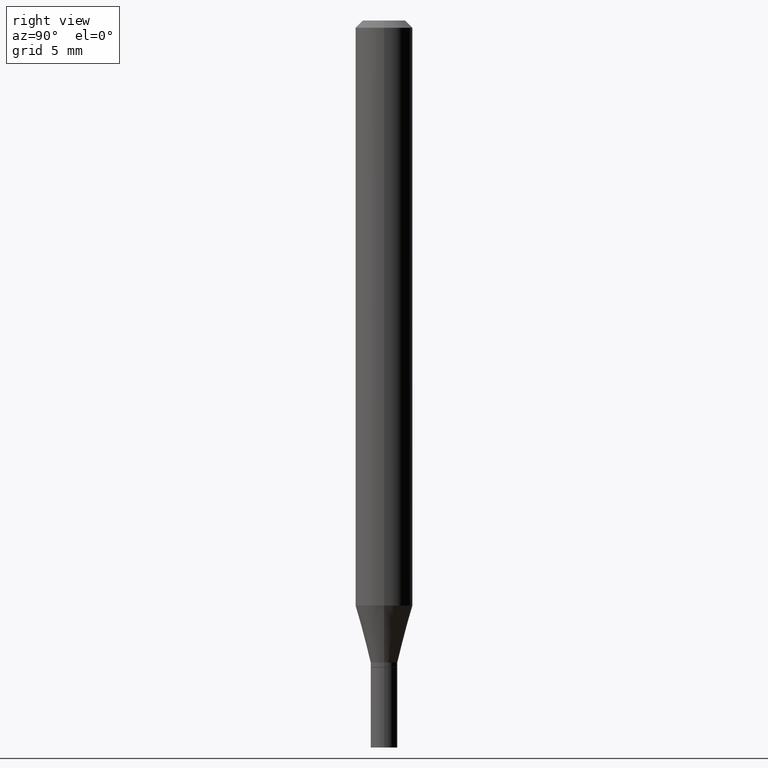
[diagram: clean part render]
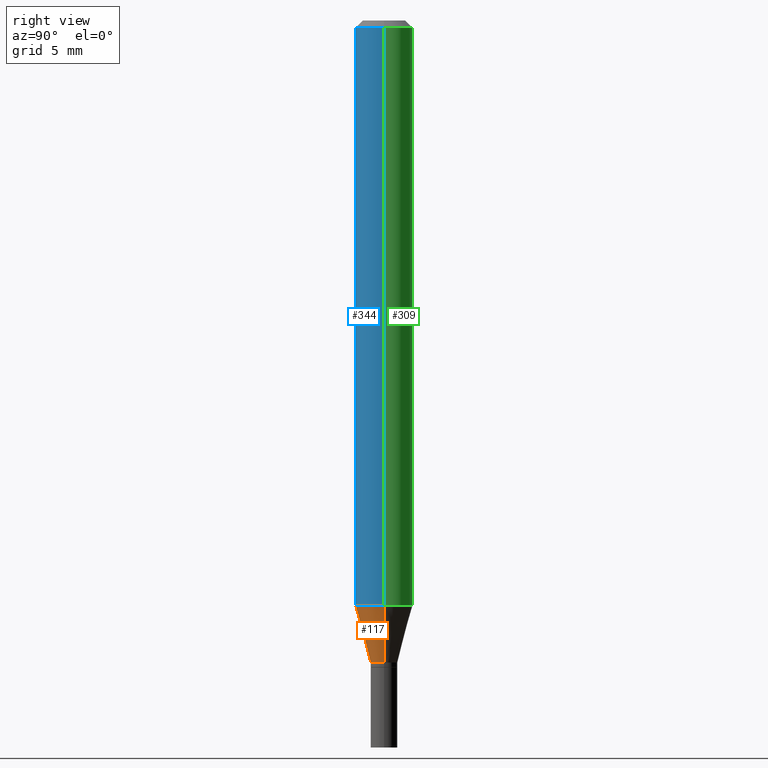
[diagram: same view with three faces highlighted in distinct colors, each labeled with its STEP entity id]
A machine part, right view with three faces highlighted in distinct colors.
Their STEP definitions:

[orange] entity #117 — the highlighted conical surface has half-angle 15 deg.
#8 = DIRECTION ( 'NONE',  ( 1.000000000000000000, -6.982962677686275388E-15, 0.000000000000000000 ) ) ;
#9 = AXIS2_PLACEMENT_3D ( 'NONE', #404, #80, #225 ) ;
#24 = ORIENTED_EDGE ( 'NONE', *, *, #427, .F. ) ;
#31 = VERTEX_POINT ( 'NONE', #284 ) ;
#42 = DIRECTION ( 'NONE',  ( 0.2588190451025213501, 1.565188264969621968E-15, 0.9659258262890682012 ) ) ;
#52 = DIRECTION ( 'NONE',  ( 1.000000000000000000, -6.982962677686265133E-15, 0.000000000000000000 ) ) ;
#53 = CARTESIAN_POINT ( 'NONE',  ( -0.05905000000000000526, -3.794783544832691928E-15, -1.207040399561580157 ) ) ;
#60 = VECTOR ( 'NONE', #42, 39.37007874015747433 ) ;
#76 = LINE ( 'NONE', #444, #233 ) ;
#80 = DIRECTION ( 'NONE',  ( -2.445468806185136597E-29, 3.491481338843145583E-15, 1.000000000000000000 ) ) ;
#112 = CARTESIAN_POINT ( 'NONE',  ( 0.05905000000000000526, -4.626702976416405553E-15, -1.207040399561580157 ) ) ;
#116 = DIRECTION ( 'NONE',  ( -0.2588190451025213501, 5.211531920934551042E-15, 0.9659258262890682012 ) ) ;
#117 = ADVANCED_FACE ( 'NONE', ( #219 ), #375, .T. ) ;
#136 = ORIENTED_EDGE ( 'NONE', *, *, #351, .T. ) ;
#138 = VERTEX_POINT ( 'NONE', #229 ) ;
#145 = DIRECTION ( 'NONE',  ( -2.445468806185136597E-29, 3.491481338843145583E-15, 1.000000000000000000 ) ) ;
#172 = ORIENTED_EDGE ( 'NONE', *, *, #463, .F. ) ;
#186 = CARTESIAN_POINT ( 'NONE',  ( 0.02754999999999992524, -4.817196803201886274E-15, -1.324599999999999778 ) ) ;
#219 = FACE_OUTER_BOUND ( 'NONE', #379, .T. ) ;
#221 = AXIS2_PLACEMENT_3D ( 'NONE', #332, #370, #8 ) ;
#225 = DIRECTION ( 'NONE',  ( 1.000000000000000000, -6.982962677686275388E-15, 0.000000000000000000 ) ) ;
#229 = CARTESIAN_POINT ( 'NONE',  ( -0.02754999999999992524, -4.111922601281208218E-15, -1.324599999999999778 ) ) ;
#230 = CARTESIAN_POINT ( 'NONE',  ( 2.951779644933087895E-29, -4.214359030299031421E-15, -1.207040399561580157 ) ) ;
#233 = VECTOR ( 'NONE', #116, 39.37007874015747433 ) ;
#274 = CIRCLE ( 'NONE', #9, 0.02754999999999992524 ) ;
#282 = VERTEX_POINT ( 'NONE', #53 ) ;
#284 = CARTESIAN_POINT ( 'NONE',  ( 0.02754999999999992524, -4.817196803201886274E-15, -1.324599999999999778 ) ) ;
#311 = VERTEX_POINT ( 'NONE', #112 ) ;
#332 = CARTESIAN_POINT ( 'NONE',  ( 3.239267980672831637E-29, -4.624816181431630270E-15, -1.324599999999999778 ) ) ;
#340 = LINE ( 'NONE', #186, #60 ) ;
#351 = EDGE_CURVE ( 'NONE', #31, #311, #340, .T. ) ;
#357 = ORIENTED_EDGE ( 'NONE', *, *, #446, .T. ) ;
#366 = CIRCLE ( 'NONE', #422, 0.05904999999999999832 ) ;
#370 = DIRECTION ( 'NONE',  ( -2.445468806185136597E-29, 3.491481338843145583E-15, 1.000000000000000000 ) ) ;
#375 = CONICAL_SURFACE ( 'NONE', #221, 0.02754999999999992524, 0.2617993877991500740 ) ;
#379 = EDGE_LOOP ( 'NONE', ( #24, #357, #136, #172 ) ) ;
#404 = CARTESIAN_POINT ( 'NONE',  ( 3.239267980672831637E-29, -4.624816181431630270E-15, -1.324599999999999778 ) ) ;
#422 = AXIS2_PLACEMENT_3D ( 'NONE', #230, #145, #52 ) ;
#427 = EDGE_CURVE ( 'NONE', #138, #282, #76, .T. ) ;
#444 = CARTESIAN_POINT ( 'NONE',  ( -0.02754999999999992524, -4.429061657729722929E-15, -1.324599999999999778 ) ) ;
#446 = EDGE_CURVE ( 'NONE', #138, #31, #274, .T. ) ;
#463 = EDGE_CURVE ( 'NONE', #282, #311, #366, .T. ) ;

[blue] entity #344 — the highlighted cylindrical surface (edge-blend (fillet) strip) has radius 1.4999 mm, axis along (-0, 0, 1).
#10 = CARTESIAN_POINT ( 'NONE',  ( -0.05904999999999999832, -1.713790139724500349E-15, -0.01499999999999999944 ) ) ;
#37 = LINE ( 'NONE', #264, #261 ) ;
#52 = DIRECTION ( 'NONE',  ( 1.000000000000000000, -6.982962677686265133E-15, 0.000000000000000000 ) ) ;
#53 = CARTESIAN_POINT ( 'NONE',  ( -0.05905000000000000526, -3.794783544832691928E-15, -1.207040399561580157 ) ) ;
#56 = DIRECTION ( 'NONE',  ( -2.445468806185136877E-29, 3.491481338843145188E-15, 1.000000000000000000 ) ) ;
#83 = FACE_OUTER_BOUND ( 'NONE', #93, .T. ) ;
#87 = CARTESIAN_POINT ( 'NONE',  ( 0.05904999999999999832, -4.647161662000212105E-16, -0.01499999999999999944 ) ) ;
#93 = EDGE_LOOP ( 'NONE', ( #197, #324, #411, #239 ) ) ;
#112 = CARTESIAN_POINT ( 'NONE',  ( 0.05905000000000000526, -4.626702976416405553E-15, -1.207040399561580157 ) ) ;
#145 = DIRECTION ( 'NONE',  ( -2.445468806185136597E-29, 3.491481338843145583E-15, 1.000000000000000000 ) ) ;
#156 = DIRECTION ( 'NONE',  ( -2.445468806185136877E-29, 3.491481338843145188E-15, 1.000000000000000000 ) ) ;
#160 = CARTESIAN_POINT ( 'NONE',  ( 0.05904999999999999832, -4.123439461173740327E-16, 2.879382386107500220E-30 ) ) ;
#183 = DIRECTION ( 'NONE',  ( -2.445468806185136597E-29, 3.491481338843145583E-15, 1.000000000000000000 ) ) ;
#192 = DIRECTION ( 'NONE',  ( 1.000000000000000000, -6.982962677686266711E-15, 4.876176775795936353E-29 ) ) ;
#197 = ORIENTED_EDGE ( 'NONE', *, *, #451, .F. ) ;
#230 = CARTESIAN_POINT ( 'NONE',  ( 2.951779644933087895E-29, -4.214359030299031421E-15, -1.207040399561580157 ) ) ;
#231 = VECTOR ( 'NONE', #56, 39.37007874015748143 ) ;
#237 = LINE ( 'NONE', #160, #231 ) ;
#239 = ORIENTED_EDGE ( 'NONE', *, *, #256, .F. ) ;
#247 = AXIS2_PLACEMENT_3D ( 'NONE', #290, #183, #192 ) ;
#249 = EDGE_CURVE ( 'NONE', #311, #279, #237, .T. ) ;
#252 = AXIS2_PLACEMENT_3D ( 'NONE', #273, #407, #267 ) ;
#256 = EDGE_CURVE ( 'NONE', #447, #279, #454, .T. ) ;
#261 = VECTOR ( 'NONE', #156, 39.37007874015748143 ) ;
#264 = CARTESIAN_POINT ( 'NONE',  ( -0.05904999999999999832, 4.195754854663391478E-16, -2.904631170795521892E-30 ) ) ;
#267 = DIRECTION ( 'NONE',  ( 1.000000000000000000, -6.982962677686266711E-15, 0.000000000000000000 ) ) ;
#273 = CARTESIAN_POINT ( 'NONE',  ( 3.668203209277705088E-31, -5.237222008264718399E-17, -0.01499999999999999944 ) ) ;
#279 = VERTEX_POINT ( 'NONE', #87 ) ;
#282 = VERTEX_POINT ( 'NONE', #53 ) ;
#290 = CARTESIAN_POINT ( 'NONE',  ( 0.000000000000000000, 0.000000000000000000, 0.000000000000000000 ) ) ;
#311 = VERTEX_POINT ( 'NONE', #112 ) ;
#324 = ORIENTED_EDGE ( 'NONE', *, *, #463, .T. ) ;
#344 = ADVANCED_FACE ( 'NONE', ( #83 ), #367, .T. ) ;
#366 = CIRCLE ( 'NONE', #422, 0.05904999999999999832 ) ;
#367 = CYLINDRICAL_SURFACE ( 'NONE', #247, 0.05904999999999999832 ) ;
#407 = DIRECTION ( 'NONE',  ( -2.445468806185136597E-29, 3.491481338843145583E-15, 1.000000000000000000 ) ) ;
#411 = ORIENTED_EDGE ( 'NONE', *, *, #249, .T. ) ;
#422 = AXIS2_PLACEMENT_3D ( 'NONE', #230, #145, #52 ) ;
#447 = VERTEX_POINT ( 'NONE', #10 ) ;
#451 = EDGE_CURVE ( 'NONE', #282, #447, #37, .T. ) ;
#454 = CIRCLE ( 'NONE', #252, 0.05904999999999999832 ) ;
#463 = EDGE_CURVE ( 'NONE', #282, #311, #366, .T. ) ;

[green] entity #309 — the highlighted cylindrical surface (edge-blend (fillet) strip) has radius 1.4999 mm, axis along (-0, 0, 1).
#10 = CARTESIAN_POINT ( 'NONE',  ( -0.05904999999999999832, -1.713790139724500349E-15, -0.01499999999999999944 ) ) ;
#18 = EDGE_LOOP ( 'NONE', ( #103, #212, #62, #462 ) ) ;
#37 = LINE ( 'NONE', #264, #261 ) ;
#40 = CIRCLE ( 'NONE', #153, 0.05904999999999999832 ) ;
#50 = EDGE_CURVE ( 'NONE', #311, #282, #40, .T. ) ;
#53 = CARTESIAN_POINT ( 'NONE',  ( -0.05905000000000000526, -3.794783544832691928E-15, -1.207040399561580157 ) ) ;
#56 = DIRECTION ( 'NONE',  ( -2.445468806185136877E-29, 3.491481338843145188E-15, 1.000000000000000000 ) ) ;
#62 = ORIENTED_EDGE ( 'NONE', *, *, #420, .F. ) ;
#74 = CARTESIAN_POINT ( 'NONE',  ( 3.668203209277705088E-31, -5.237222008264718399E-17, -0.01499999999999999944 ) ) ;
#87 = CARTESIAN_POINT ( 'NONE',  ( 0.05904999999999999832, -4.647161662000212105E-16, -0.01499999999999999944 ) ) ;
#103 = ORIENTED_EDGE ( 'NONE', *, *, #50, .T. ) ;
#112 = CARTESIAN_POINT ( 'NONE',  ( 0.05905000000000000526, -4.626702976416405553E-15, -1.207040399561580157 ) ) ;
#153 = AXIS2_PLACEMENT_3D ( 'NONE', #323, #322, #458 ) ;
#156 = DIRECTION ( 'NONE',  ( -2.445468806185136877E-29, 3.491481338843145188E-15, 1.000000000000000000 ) ) ;
#160 = CARTESIAN_POINT ( 'NONE',  ( 0.05904999999999999832, -4.123439461173740327E-16, 2.879382386107500220E-30 ) ) ;
#193 = FACE_OUTER_BOUND ( 'NONE', #18, .T. ) ;
#212 = ORIENTED_EDGE ( 'NONE', *, *, #451, .T. ) ;
#218 = DIRECTION ( 'NONE',  ( 1.000000000000000000, -6.982962677686266711E-15, 0.000000000000000000 ) ) ;
#231 = VECTOR ( 'NONE', #56, 39.37007874015748143 ) ;
#237 = LINE ( 'NONE', #160, #231 ) ;
#249 = EDGE_CURVE ( 'NONE', #311, #279, #237, .T. ) ;
#261 = VECTOR ( 'NONE', #156, 39.37007874015748143 ) ;
#264 = CARTESIAN_POINT ( 'NONE',  ( -0.05904999999999999832, 4.195754854663391478E-16, -2.904631170795521892E-30 ) ) ;
#266 = DIRECTION ( 'NONE',  ( -2.445468806185136597E-29, 3.491481338843145583E-15, 1.000000000000000000 ) ) ;
#279 = VERTEX_POINT ( 'NONE', #87 ) ;
#282 = VERTEX_POINT ( 'NONE', #53 ) ;
#309 = ADVANCED_FACE ( 'NONE', ( #193 ), #341, .T. ) ;
#311 = VERTEX_POINT ( 'NONE', #112 ) ;
#321 = AXIS2_PLACEMENT_3D ( 'NONE', #74, #376, #218 ) ;
#322 = DIRECTION ( 'NONE',  ( -2.445468806185136597E-29, 3.491481338843145583E-15, 1.000000000000000000 ) ) ;
#323 = CARTESIAN_POINT ( 'NONE',  ( 2.951779644933087895E-29, -4.214359030299031421E-15, -1.207040399561580157 ) ) ;
#341 = CYLINDRICAL_SURFACE ( 'NONE', #416, 0.05904999999999999832 ) ;
#376 = DIRECTION ( 'NONE',  ( -2.445468806185136597E-29, 3.491481338843145583E-15, 1.000000000000000000 ) ) ;
#399 = CIRCLE ( 'NONE', #321, 0.05904999999999999832 ) ;
#416 = AXIS2_PLACEMENT_3D ( 'NONE', #445, #266, #431 ) ;
#420 = EDGE_CURVE ( 'NONE', #279, #447, #399, .T. ) ;
#431 = DIRECTION ( 'NONE',  ( 1.000000000000000000, -6.982962677686266711E-15, 4.876176775795936353E-29 ) ) ;
#445 = CARTESIAN_POINT ( 'NONE',  ( 0.000000000000000000, 0.000000000000000000, 0.000000000000000000 ) ) ;
#447 = VERTEX_POINT ( 'NONE', #10 ) ;
#451 = EDGE_CURVE ( 'NONE', #282, #447, #37, .T. ) ;
#458 = DIRECTION ( 'NONE',  ( 1.000000000000000000, -6.982962677686265133E-15, 0.000000000000000000 ) ) ;
#462 = ORIENTED_EDGE ( 'NONE', *, *, #249, .F. ) ;